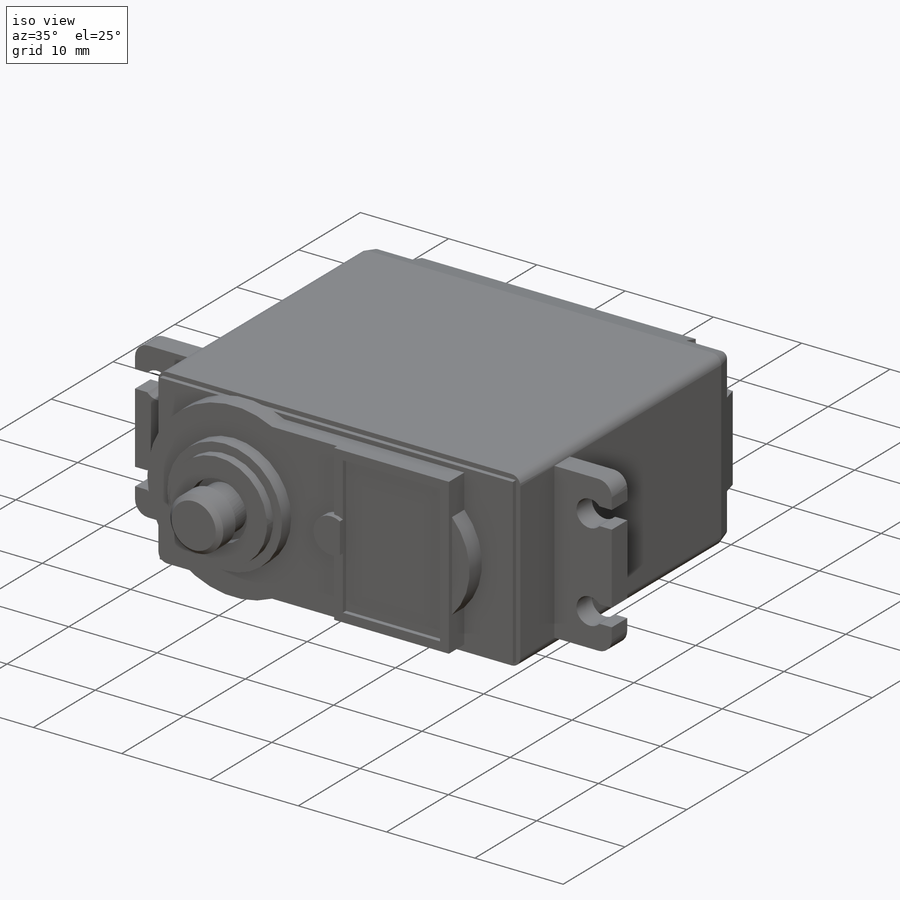
[diagram: iso view]
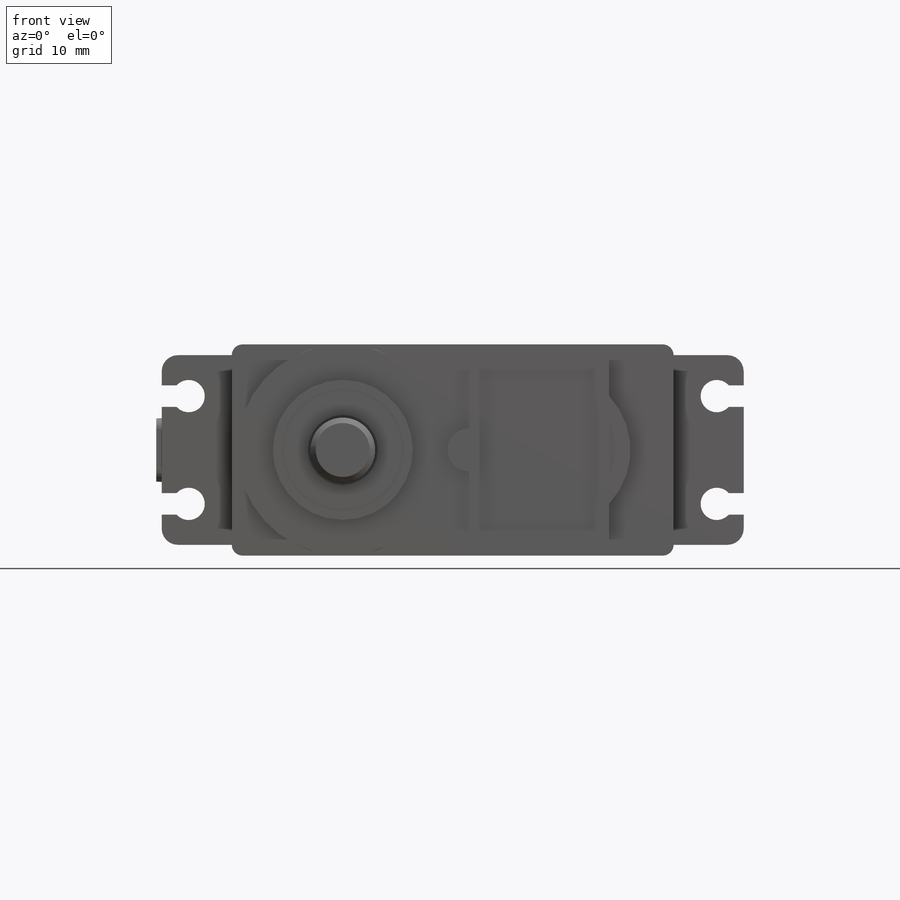
[diagram: front view]
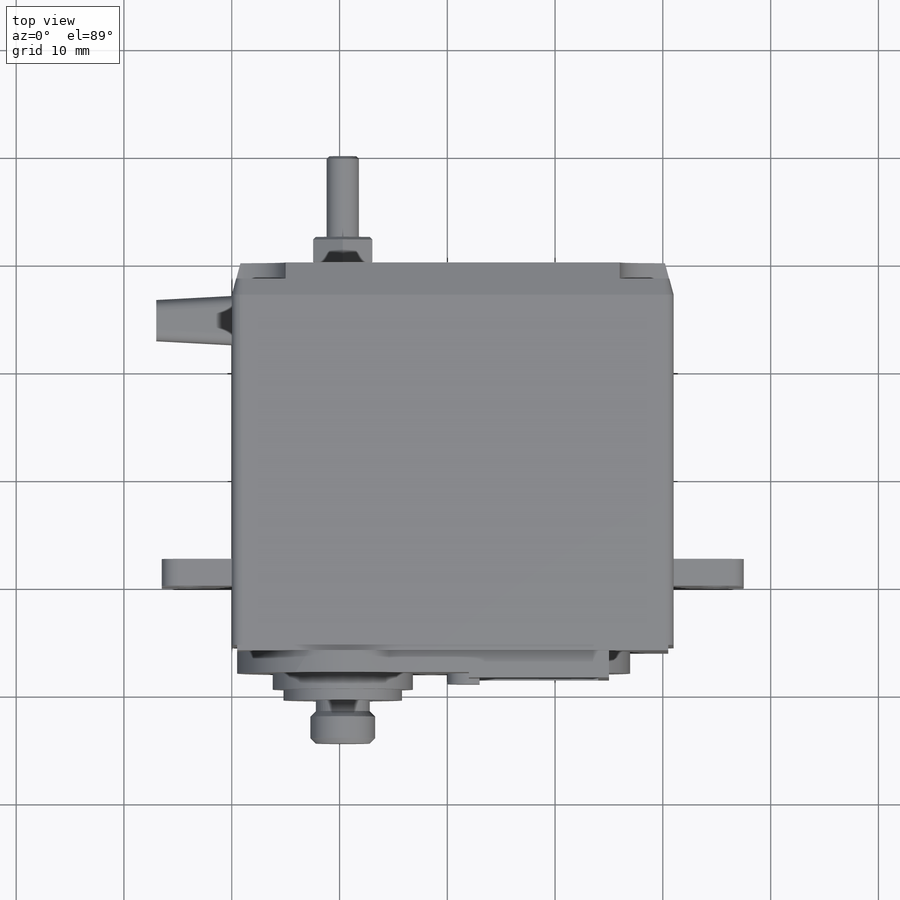
[diagram: top view]
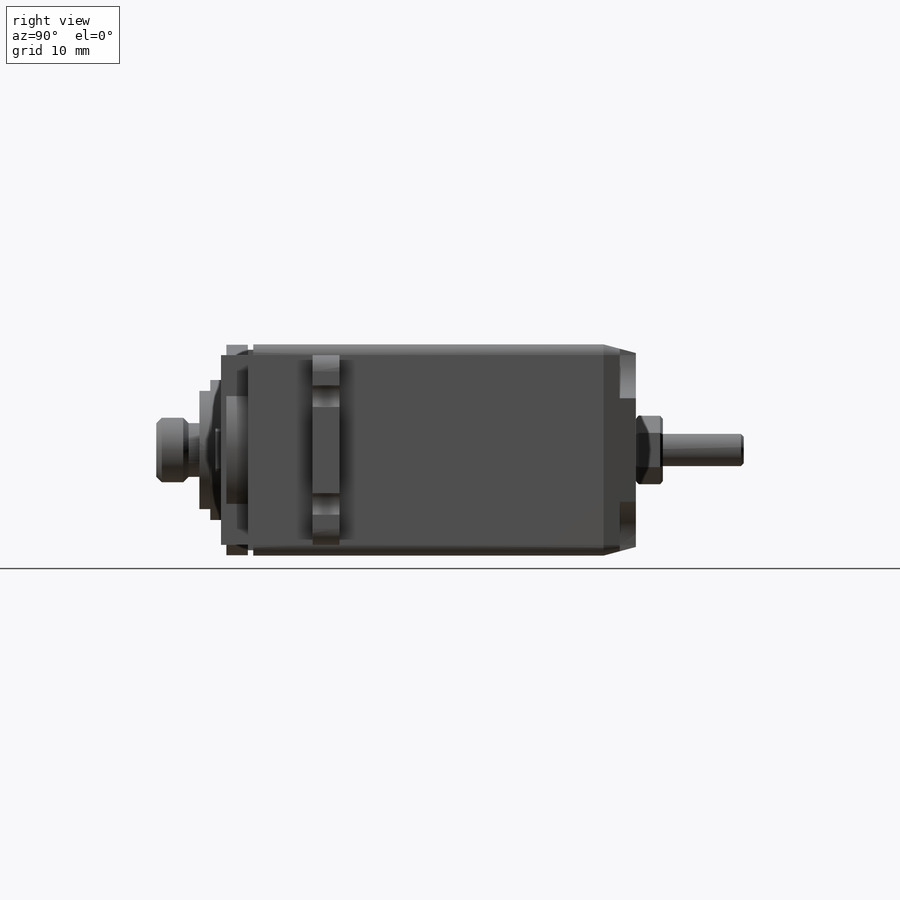
[diagram: right view]
SOLIDWORKS PART (.sldprt)
format: sldprt  version: not decoded by parser v0  size: 658,432 bytes
history: native  units: mm
features: sketch x19, extrude x13, chamfer x5, cut_extrude x3, fillet x3, plane x2, mirror x2, material x1 (+13 scaffold rows collapsed)
feature tree (61):
  scaffold x13  (default folders/planes/origin — collapsed)
  material  "Material <not specified>"
  sketch  "Sketch1"  dims[c1.D1=~33.113161mm c1.D2=~49.168342mm c2.D1=41.0mm c2.D2=35.5mm]
  extrude  "Boss-Extrude1"  Depth=19.6mm
  sketch  "Sketch5"  dims[c1.D1=~12.911415mm c1.D2=~7.120266mm c2.D1=~16.139269mm c2.D2=~6.028491mm c3.D1=5.5mm c3.D2=2.5mm c3.D3=1.0mm c3.D4=1.0mm]
  extrude  "Boss-Extrude3"  Depth=6.5mm
  sketch  "Sketch6"  dims[c1.D1=~2.258001mm c1.D2=~2.326279mm c1.D3=3.0mm c1.D4=3.0mm c1.D5=3.0mm c2.D1=4.0mm c2.D2=4.0mm c2.D4=2.5mm c2.D5=1.0mm c2.D6=~0.497947mm c3.D1=10.0mm]
  cut_extrude  "Cut-Extrude3"  [1 undecoded]
  sketch  "Sketch8"  dims[D1=0.0mm D2=0.5mm]
  extrude  "Boss-Extrude4"  Depth=0.5mm
  sketch  "Sketch10"  dims[c1.D3=~14.472833mm c1.D2=~7.438458mm c1.D1=18.6mm c2.D2=~20.601621mm c2.D1=6.0mm c3.D2=2.0mm c3.D3=10.0mm c3.D4=0.5mm c3.D5=0.5mm]
  extrude  "Boss-Extrude6"  Depth=2mm
  sketch  "Sketch11"  dims[c1.D3=4.0mm c1.D4=4.0mm c1.D1=17.6mm c1.D2=~9.44295mm c2.D1=13.0mm c2.D3=17.6mm c2.D4=8.8mm c2.D5=2.0mm c2.D2=1.0mm]
  extrude  "Boss-Extrude7"  Depth=0.5mm
  sketch  "Sketch12"  dims[D1=~6.067949mm]
  extrude  "Boss-Extrude8"  Depth=0.5mm
  sketch  "Sketch13"  dims[D1=13.0mm]
  extrude  "Boss-Extrude9"  Depth=1.5mm
  sketch  "Sketch14"  dims[D1=11.0mm]
  extrude  "Boss-Extrude10"  Depth=1mm
  sketch  "Sketch15"  dims[D1=6.5mm]
  cut_extrude  "Cut-Extrude4"  Depth=1mm
  sketch  "Sketch16"  dims[D1=5.0mm]
  extrude  "Boss-Extrude11"  Depth=2mm
  sketch  "Sketch18"  dims[D1=6.0mm]
  extrude  "Boss-Extrude12"  Depth=3mm
  sketch  "Sketch19"
  sketch  "Sketch20"
  plane  "Plane1"
  mirror  "Mirror1"
  mirror  "Mirror2"
  sketch  "Sketch21"  dims[c1.D1=~5.047814mm c1.D2=~2.612986mm c2.D1=6.5mm c2.D2=6.5mm c2.D3=3.0mm c2.D4=4.5mm]
  extrude  "Boss-Extrude13"  Depth=7mm
  sketch  "Sketch22"  dims[D1=5.0mm D2=5.0mm D3=1.0mm D4=4.0mm]
  fillet  "Fillet1"  Radius=1mm
  fillet  "Fillet2"  Radius=1.5mm
  chamfer  "Chamfer1"  Distance=0.5mm Angle=45deg
  chamfer  "Chamfer2"  Distance=0.5mm Angle=45deg
  fillet  "Fillet5"  Radius=1mm
  chamfer  "Chamfer3"  Distance=3mm Angle=15deg
  cut_extrude  "Cut-Extrude5"  Depth=1.5mm
  sketch  "Sketch30"  dims[D1=3.3mm D2=~26.902448mm D3=~0.213559mm]
  sketch  "Sketch34"  dims[D1=3.0mm]
  extrude  "Boss-Extrude15"  Depth=10mm
  sketch  "Sketch35"  dims[D1=5.5mm]
  extrude  "Boss-Extrude16"  Depth=2.5mm
  chamfer  "Chamfer4"  Distance=0.25mm Angle=45deg
  chamfer  "Chamfer5"  Distance=0.25mm Angle=45deg
  plane  "Plane2"
decode coverage: 40 of 45 modeling features carry decoded parameters
note: ~ marks probable driven/reference dimensions
note: 1 parameter value undecoded
note: suppression state not decoded; provenance and decode notes live in map.json
